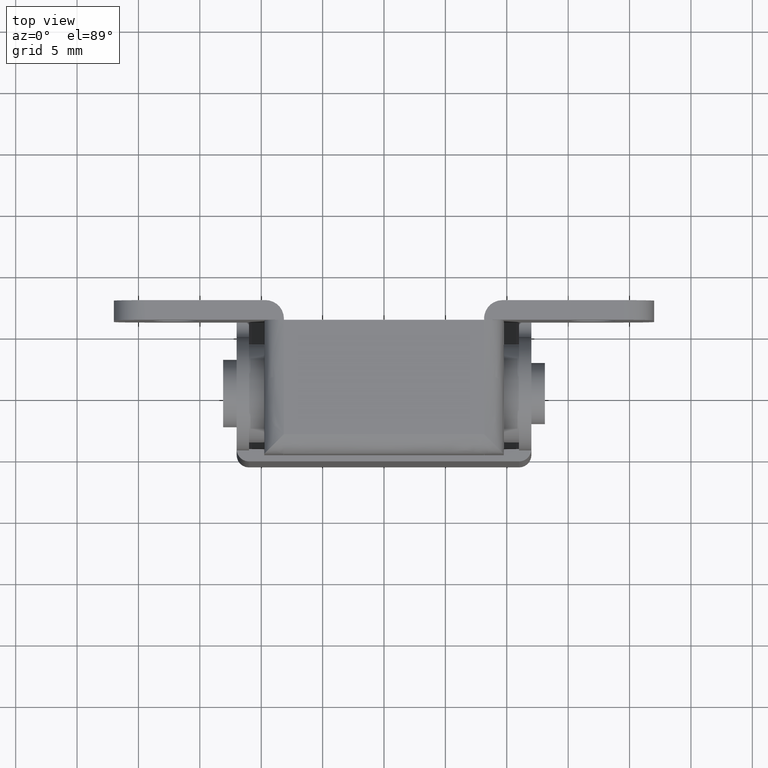
[diagram: clean part render]
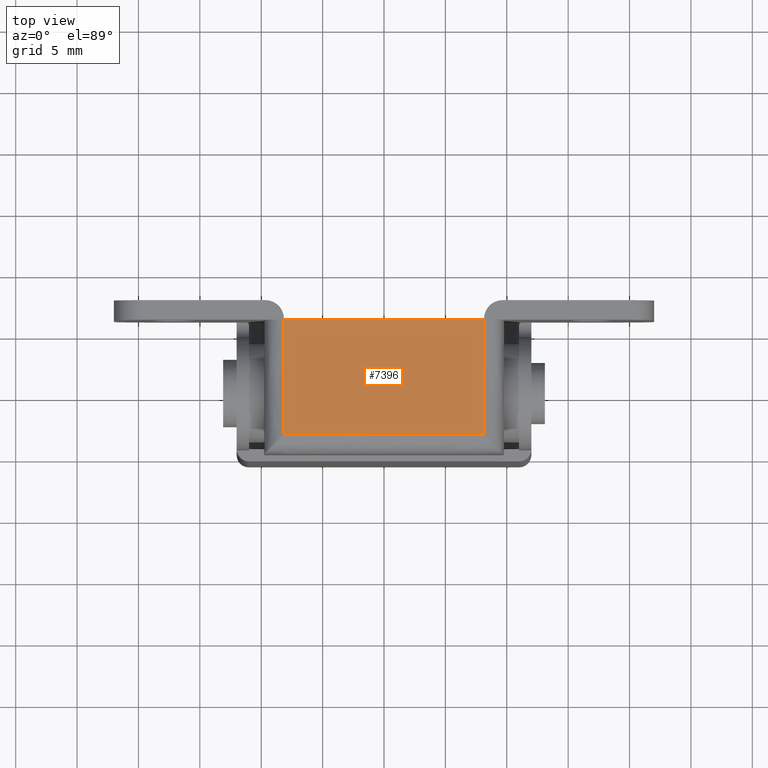
[diagram: same view with one face highlighted and labeled with its STEP entity id]
A machine part, top view. The second image highlights one B-rep face of the part: STEP entity #7396.
In plain terms, the highlighted face is a freeform B-spline surface patch.
Its self-contained STEP definition (entity closure, byte-faithful):
#5583=CARTESIAN_POINT('',(8.149999999999999,-3.399999999999960,6.0));
#5584=VERTEX_POINT('',#5583);
#5602=CARTESIAN_POINT('',(-8.149999999999999,-3.399999999999960,6.0));
#5603=VERTEX_POINT('',#5602);
#5604=CARTESIAN_POINT('',(-8.149999999999999,-3.399999999999960,6.0));
#5605=CARTESIAN_POINT('',(8.149999999999999,-3.399999999999960,6.0));
#5606=QUASI_UNIFORM_CURVE('',1,(#5604,#5605),.UNSPECIFIED.,.F.,.U.);
#5607=EDGE_CURVE('',#5603,#5584,#5606,.T.);
#5676=CARTESIAN_POINT('',(8.150000999999850,5.900008999999900,6.0));
#5677=VERTEX_POINT('',#5676);
#5678=CARTESIAN_POINT('',(8.149999999999999,-3.399999999999960,6.0));
#5679=CARTESIAN_POINT('',(8.150000999999850,5.900008999999900,6.0));
#5680=QUASI_UNIFORM_CURVE('',1,(#5678,#5679),.UNSPECIFIED.,.F.,.U.);
#5681=EDGE_CURVE('',#5584,#5677,#5680,.T.);
#5729=CARTESIAN_POINT('',(-8.149994000000001,5.900008999999900,6.0));
#5730=VERTEX_POINT('',#5729);
#5731=CARTESIAN_POINT('',(-8.149994000000001,5.900008999999900,6.0));
#5732=CARTESIAN_POINT('',(-8.149999999999999,-3.399999999999960,6.0));
#5733=QUASI_UNIFORM_CURVE('',1,(#5731,#5732),.UNSPECIFIED.,.F.,.U.);
#5734=EDGE_CURVE('',#5730,#5603,#5733,.T.);
#5956=CARTESIAN_POINT('',(-8.149994000000001,5.900008999999900,6.0));
#5957=CARTESIAN_POINT('',(8.150000999999850,5.900008999999900,6.0));
#5958=QUASI_UNIFORM_CURVE('',1,(#5956,#5957),.UNSPECIFIED.,.F.,.U.);
#5959=EDGE_CURVE('',#5730,#5677,#5958,.T.);
#7385=CARTESIAN_POINT('',(8.964185501083986,-3.864535518826562,6.0));
#7386=CARTESIAN_POINT('',(-8.964184209617402,-3.864535518826562,6.0));
#7387=CARTESIAN_POINT('',(8.964185501083986,6.364544685123624,6.0));
#7388=CARTESIAN_POINT('',(-8.964184209617402,6.364544685123624,6.0));
#7389=B_SPLINE_SURFACE_WITH_KNOTS('',1,1,((#7385,#7387),(#7386,#7388)),.UNSPECIFIED.,.F.,.F.,.U.,(2,2),(2,2),(0.0,17.928369710701389),(0.0,10.229080203950190),.UNSPECIFIED.);
#7390=ORIENTED_EDGE('',*,*,#5734,.T.);
#7391=ORIENTED_EDGE('',*,*,#5607,.T.);
#7392=ORIENTED_EDGE('',*,*,#5681,.T.);
#7393=ORIENTED_EDGE('',*,*,#5959,.F.);
#7394=EDGE_LOOP('',(#7390,#7391,#7392,#7393));
#7395=FACE_OUTER_BOUND('',#7394,.T.);
#7396=ADVANCED_FACE('',(#7395),#7389,.F.);